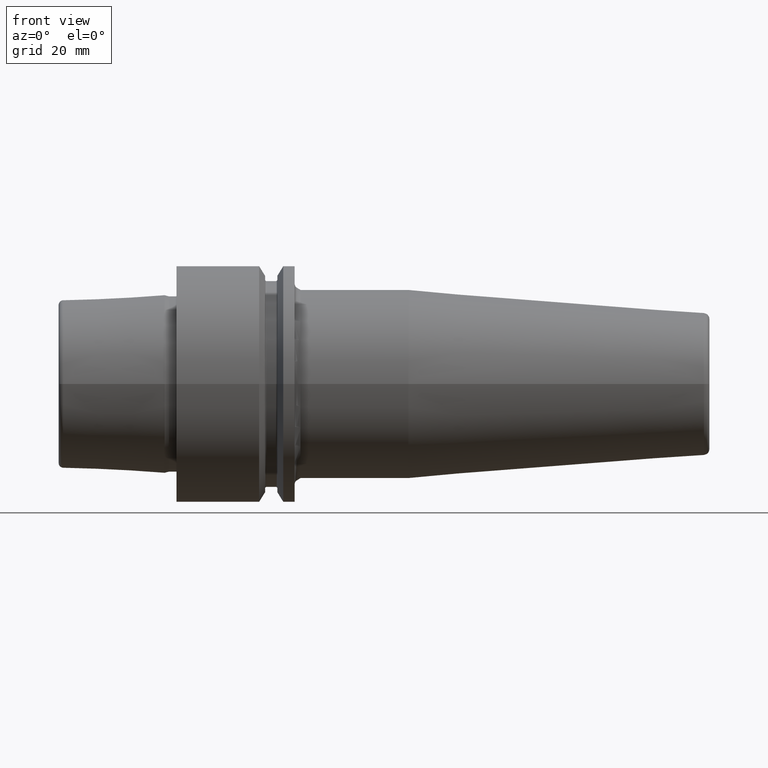
[diagram: clean part render]
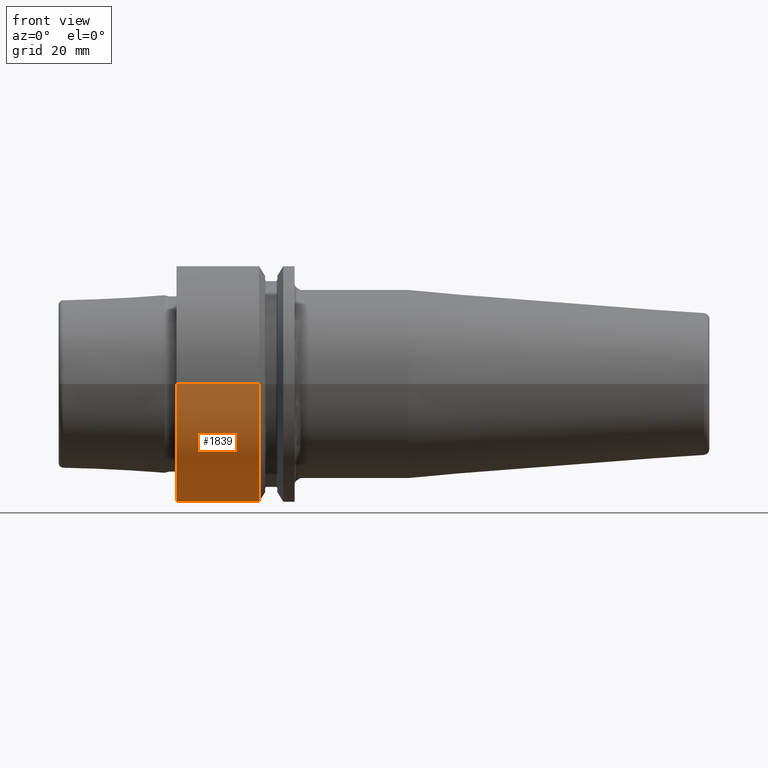
[diagram: same view with one face highlighted and labeled with its STEP entity id]
A machine part, front view. The second image highlights one B-rep face of the part: STEP entity #1839.
In plain terms, the highlighted cylindrical surface (partial cylindrical patch) has radius 20 mm, axis along (1, 0, 0).
Its self-contained STEP definition (entity closure, byte-faithful):
#457=CARTESIAN_POINT('',(-1.065814103640E-14,0.E0,0.E0));
#458=DIRECTION('',(-1.E0,0.E0,0.E0));
#459=DIRECTION('',(0.E0,1.E0,0.E0));
#460=AXIS2_PLACEMENT_3D('',#457,#458,#459);
#609=CARTESIAN_POINT('',(1.396484030111E1,0.E0,0.E0));
#610=DIRECTION('',(1.E0,0.E0,0.E0));
#611=DIRECTION('',(0.E0,-1.E0,0.E0));
#612=AXIS2_PLACEMENT_3D('',#609,#610,#611);
#614=DIRECTION('',(-1.E0,0.E0,0.E0));
#615=VECTOR('',#614,1.396484030111E1);
#616=CARTESIAN_POINT('',(1.396484030111E1,2.E1,0.E0));
#617=LINE('',#616,#615);
#618=DIRECTION('',(-1.E0,0.E0,0.E0));
#619=VECTOR('',#618,1.396484030111E1);
#620=CARTESIAN_POINT('',(1.396484030111E1,-2.E1,0.E0));
#621=LINE('',#620,#619);
#802=CARTESIAN_POINT('',(1.396484030111E1,2.E1,0.E0));
#803=VERTEX_POINT('',#802);
#806=CARTESIAN_POINT('',(1.396484030111E1,-2.E1,0.E0));
#807=VERTEX_POINT('',#806);
#812=CARTESIAN_POINT('',(-1.065814103640E-14,2.E1,0.E0));
#813=CARTESIAN_POINT('',(-1.065814103640E-14,-2.E1,0.E0));
#814=VERTEX_POINT('',#812);
#815=VERTEX_POINT('',#813);
#1828=CARTESIAN_POINT('',(-2.18925E1,0.E0,0.E0));
#1829=DIRECTION('',(1.E0,0.E0,0.E0));
#1830=DIRECTION('',(0.E0,-1.E0,0.E0));
#1831=AXIS2_PLACEMENT_3D('',#1828,#1829,#1830);
#1832=CYLINDRICAL_SURFACE('',#1831,2.E1);
#1833=ORIENTED_EDGE('',*,*,#1795,.T.);
#1834=ORIENTED_EDGE('',*,*,#1638,.T.);
#1835=ORIENTED_EDGE('',*,*,#1603,.T.);
#1836=ORIENTED_EDGE('',*,*,#1635,.F.);
#1837=EDGE_LOOP('',(#1833,#1834,#1835,#1836));
#1838=FACE_OUTER_BOUND('',#1837,.F.);
#1839=ADVANCED_FACE('',(#1838),#1832,.T.);
#461=CIRCLE('',#460,2.E1);
#613=CIRCLE('',#612,2.E1);
#1603=EDGE_CURVE('',#814,#815,#461,.T.);
#1635=EDGE_CURVE('',#807,#815,#621,.T.);
#1638=EDGE_CURVE('',#803,#814,#617,.T.);
#1795=EDGE_CURVE('',#807,#803,#613,.T.);